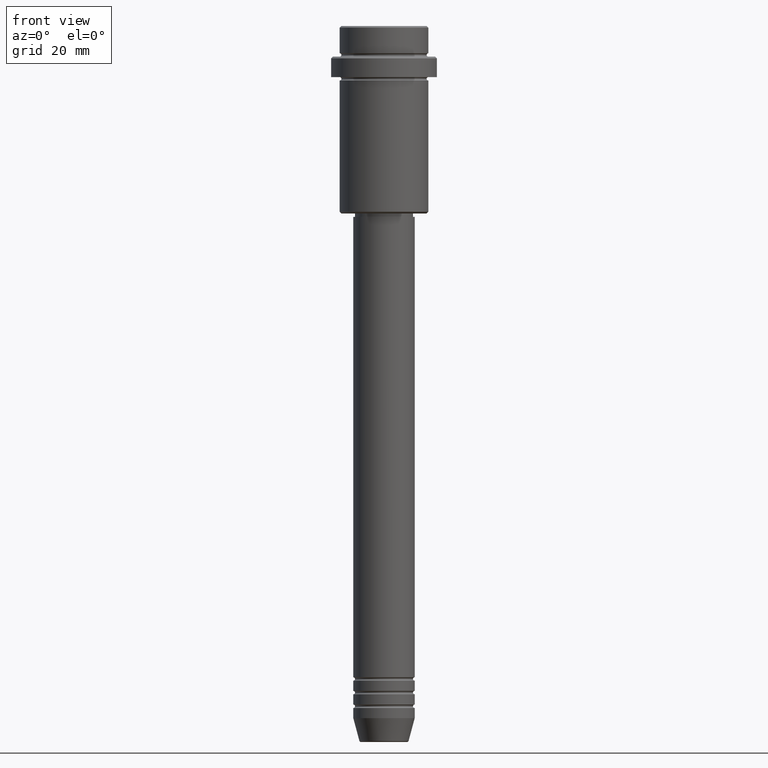
[diagram: clean part render]
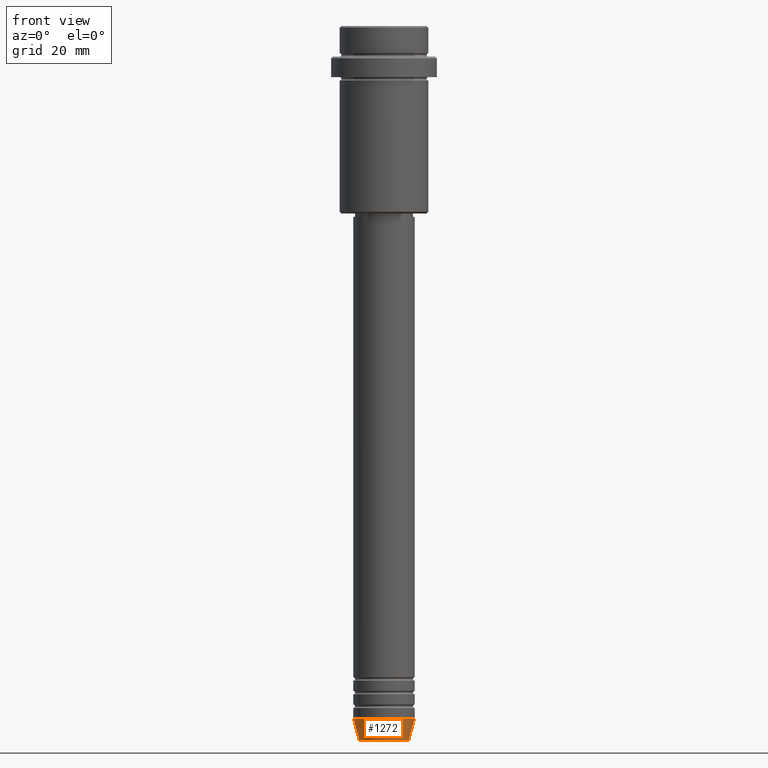
[diagram: same view with one face highlighted and labeled with its STEP entity id]
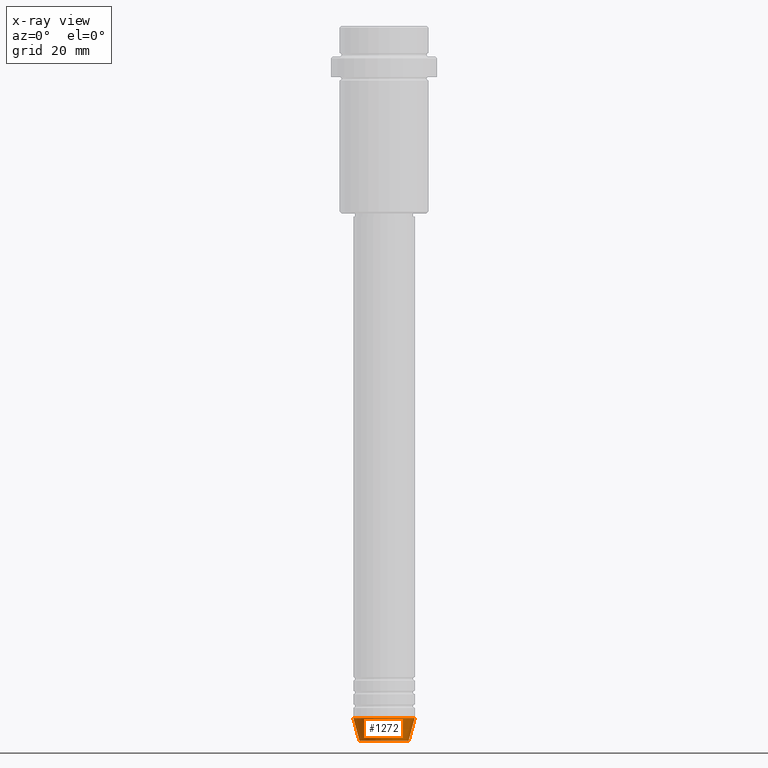
[diagram: x-ray of the same camera — body ghosted, the highlighted face saturated]
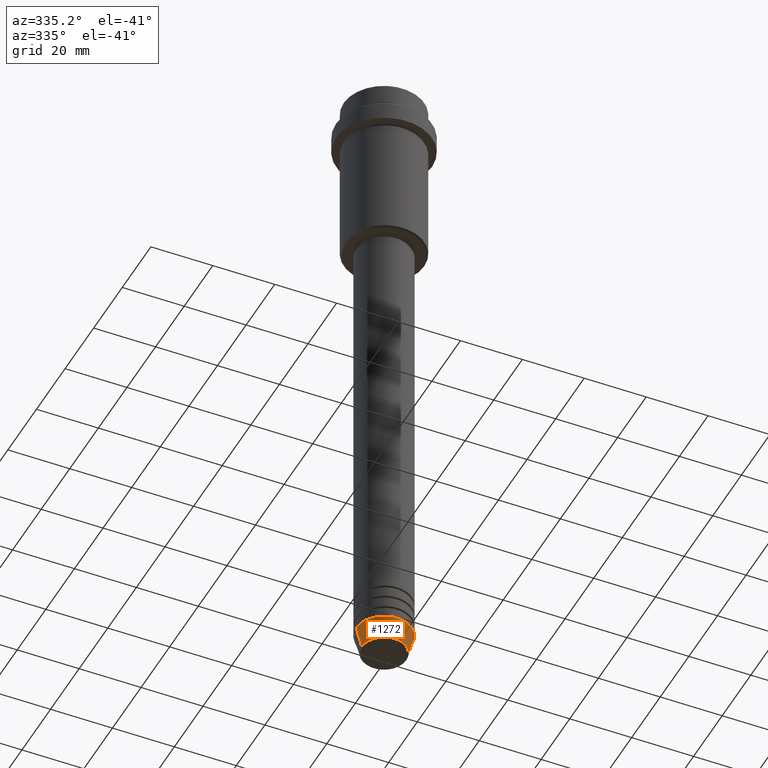
[diagram: same view with one face highlighted and labeled with its STEP entity id]
A machine part, front view. The second image highlights one B-rep face of the part: STEP entity #1272.
The next image is the same camera in x-ray: the body ghosted, the highlighted face saturated — about 0% of this face is hidden behind the body in this view.
A second angle (auxiliary view) of the same face is appended — the face is thin or edge-on in the first view.
In plain terms, the highlighted conical surface has half-angle 15 deg.
Its self-contained STEP definition (entity closure, byte-faithful):
#17 = DIRECTION ( 'NONE',  ( -0.2588190451025213501, 3.169619151431772337E-17, 0.9659258262890680902 ) ) ;
#20 = CARTESIAN_POINT ( 'NONE',  ( -9.000000000000000000, 1.102182119232617714E-15, -203.0000000000000000 ) ) ;
#28 = ORIENTED_EDGE ( 'NONE', *, *, #220, .T. ) ;
#55 = DIRECTION ( 'NONE',  ( -0.000000000000000000, -0.000000000000000000, 1.000000000000000000 ) ) ;
#187 = DIRECTION ( 'NONE',  ( 1.000000000000000000, 0.000000000000000000, 0.000000000000000000 ) ) ;
#190 = CARTESIAN_POINT ( 'NONE',  ( 0.000000000000000000, 0.000000000000000000, -209.6294095225512990 ) ) ;
#194 = CARTESIAN_POINT ( 'NONE',  ( -9.000000000000000000, 1.102182119232617714E-15, -203.0000000000000000 ) ) ;
#208 = ORIENTED_EDGE ( 'NONE', *, *, #303, .T. ) ;
#220 = EDGE_CURVE ( 'NONE', #516, #612, #1095, .T. ) ;
#234 = VECTOR ( 'NONE', #872, 1000.000000000000000 ) ;
#241 = CONICAL_SURFACE ( 'NONE', #445, 9.000000000000000000, 0.2617993877991500740 ) ;
#251 = ORIENTED_EDGE ( 'NONE', *, *, #1353, .F. ) ;
#303 = EDGE_CURVE ( 'NONE', #612, #1306, #1190, .T. ) ;
#321 = EDGE_CURVE ( 'NONE', #516, #642, #1258, .T. ) ;
#331 = EDGE_LOOP ( 'NONE', ( #421, #28, #208, #251 ) ) ;
#347 = CARTESIAN_POINT ( 'NONE',  ( 9.000000000000000000, 0.000000000000000000, -203.0000000000000000 ) ) ;
#401 = CARTESIAN_POINT ( 'NONE',  ( 7.223655072137188604, 0.000000000000000000, -209.6294095225512990 ) ) ;
#421 = ORIENTED_EDGE ( 'NONE', *, *, #321, .F. ) ;
#445 = AXIS2_PLACEMENT_3D ( 'NONE', #1033, #468, #1011 ) ;
#468 = DIRECTION ( 'NONE',  ( -0.000000000000000000, -0.000000000000000000, 1.000000000000000000 ) ) ;
#516 = VERTEX_POINT ( 'NONE', #956 ) ;
#612 = VERTEX_POINT ( 'NONE', #401 ) ;
#642 = VERTEX_POINT ( 'NONE', #194 ) ;
#705 = VECTOR ( 'NONE', #17, 1000.000000000000000 ) ;
#718 = DIRECTION ( 'NONE',  ( 1.000000000000000000, 0.000000000000000000, 0.000000000000000000 ) ) ;
#752 = DIRECTION ( 'NONE',  ( -0.000000000000000000, -0.000000000000000000, 1.000000000000000000 ) ) ;
#783 = AXIS2_PLACEMENT_3D ( 'NONE', #1056, #55, #718 ) ;
#854 = CARTESIAN_POINT ( 'NONE',  ( 9.000000000000000000, 0.000000000000000000, -203.0000000000000000 ) ) ;
#872 = DIRECTION ( 'NONE',  ( 0.2588190451025213501, 0.000000000000000000, 0.9659258262890680902 ) ) ;
#956 = CARTESIAN_POINT ( 'NONE',  ( -7.223655072137189492, 9.934123627281765110E-16, -209.6294095225512990 ) ) ;
#1011 = DIRECTION ( 'NONE',  ( 1.000000000000000000, 0.000000000000000000, 0.000000000000000000 ) ) ;
#1033 = CARTESIAN_POINT ( 'NONE',  ( 0.000000000000000000, 0.000000000000000000, -203.0000000000000000 ) ) ;
#1056 = CARTESIAN_POINT ( 'NONE',  ( 0.000000000000000000, 0.000000000000000000, -203.0000000000000000 ) ) ;
#1095 = CIRCLE ( 'NONE', #1381, 7.223655072137188604 ) ;
#1190 = LINE ( 'NONE', #854, #234 ) ;
#1232 = FACE_OUTER_BOUND ( 'NONE', #331, .T. ) ;
#1258 = LINE ( 'NONE', #20, #705 ) ;
#1272 = ADVANCED_FACE ( 'NONE', ( #1232 ), #241, .T. ) ;
#1306 = VERTEX_POINT ( 'NONE', #347 ) ;
#1322 = CIRCLE ( 'NONE', #783, 9.000000000000000000 ) ;
#1353 = EDGE_CURVE ( 'NONE', #642, #1306, #1322, .T. ) ;
#1381 = AXIS2_PLACEMENT_3D ( 'NONE', #190, #752, #187 ) ;